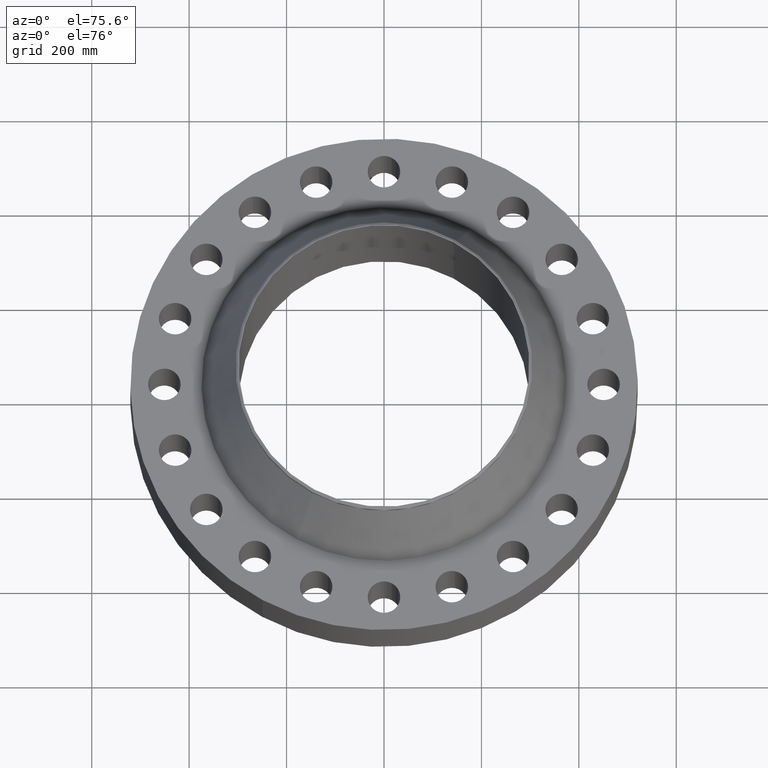
[diagram: clean part render]
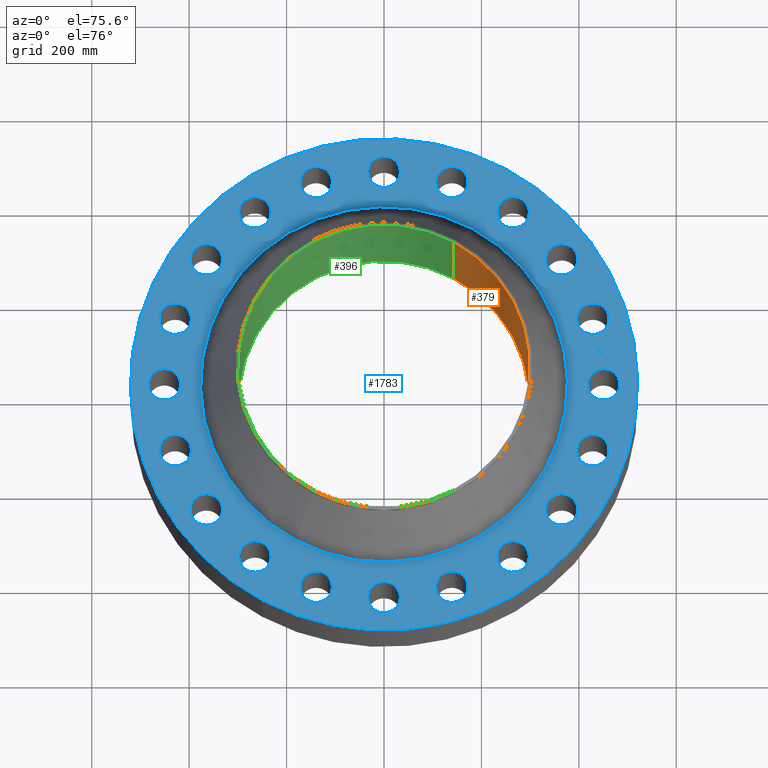
[diagram: same view with three faces highlighted in distinct colors, each labeled with its STEP entity id]
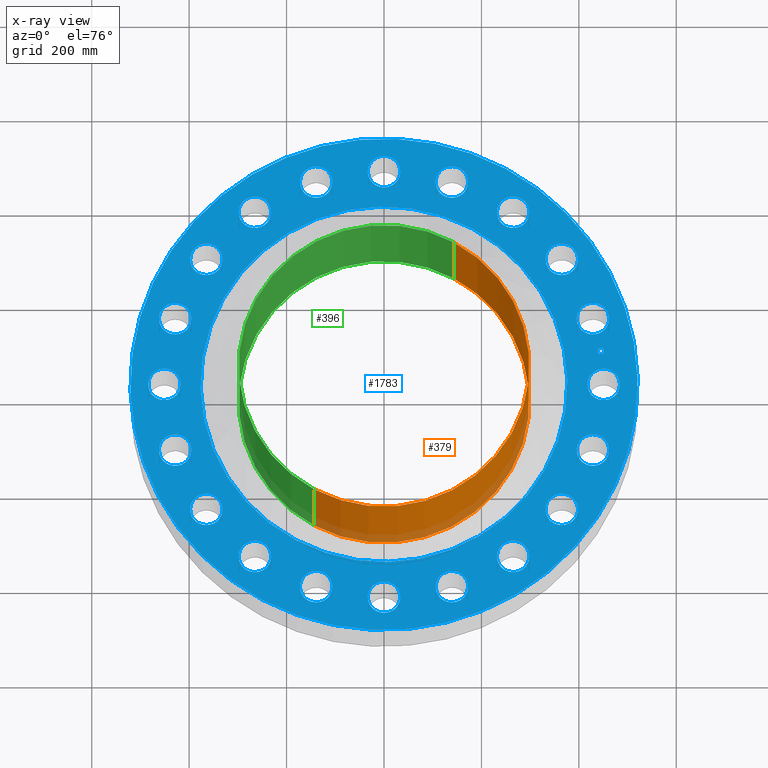
[diagram: x-ray of the same camera — body ghosted, the three highlighted faces saturated]
A machine part, auxiliary view with three faces highlighted in distinct colors.
The next image is the same camera in x-ray (body ghosted, the three faces saturated) — at least one of them is partly hidden behind the body in this view.
Their STEP definitions:

[orange] entity #379 — the highlighted cylindrical surface (partial cylindrical patch) has radius 298.45 mm, axis along (0, 0, -1).
#343=AXIS2_PLACEMENT_3D('Cylinder Axis2P3D',#340,#341,#342) ;
#347=AXIS2_PLACEMENT_3D('Circle Axis2P3D',#345,#346,$) ;
#363=AXIS2_PLACEMENT_3D('Circle Axis2P3D',#361,#362,$) ;
#340=CARTESIAN_POINT('Axis2P3D Location',(0.,0.,5.62500000002)) ;
#345=CARTESIAN_POINT('Axis2P3D Location',(0.,0.,11.5)) ;
#349=CARTESIAN_POINT('Vertex',(5.63325007862,10.3115951023,11.5)) ;
#351=CARTESIAN_POINT('Vertex',(-5.63325007862,-10.3115951023,11.5)) ;
#354=CARTESIAN_POINT('Line Origine',(5.63325007862,10.3115951023,5.62500000002)) ;
#358=CARTESIAN_POINT('Vertex',(5.63325007862,10.3115951023,-0.250000000001)) ;
#361=CARTESIAN_POINT('Axis2P3D Location',(0.,0.,-0.250000000001)) ;
#365=CARTESIAN_POINT('Vertex',(-5.63325007862,-10.3115951023,-0.250000000001)) ;
#368=CARTESIAN_POINT('Line Origine',(-5.63325007862,-10.3115951023,5.62500000002)) ;
#341=DIRECTION('Axis2P3D Direction',(0.,0.,-0.0393700787402)) ;
#342=DIRECTION('Axis2P3D XDirection',(-0.0188750212049,-0.0345504945626,0.)) ;
#346=DIRECTION('Axis2P3D Direction',(0.,0.,-0.0393700787402)) ;
#355=DIRECTION('Vector Direction',(0.,0.,-0.0393700787402)) ;
#362=DIRECTION('Axis2P3D Direction',(0.,0.,-0.0393700787402)) ;
#369=DIRECTION('Vector Direction',(0.,0.,-0.0393700787402)) ;
#356=VECTOR('Line Direction',#355,0.0393700787402) ;
#370=VECTOR('Line Direction',#369,0.0393700787402) ;
#374=ORIENTED_EDGE('',*,*,#353,.F.) ;
#375=ORIENTED_EDGE('',*,*,#360,.T.) ;
#376=ORIENTED_EDGE('',*,*,#367,.T.) ;
#377=ORIENTED_EDGE('',*,*,#372,.F.) ;
#379=ADVANCED_FACE('PartBody',(#378),#344,.F.) ;
#348=CIRCLE('generated circle',#347,11.75) ;
#364=CIRCLE('generated circle',#363,11.75) ;
#344=CYLINDRICAL_SURFACE('generated cylinder',#343,11.75) ;
#353=EDGE_CURVE('',#350,#352,#348,.T.) ;
#360=EDGE_CURVE('',#350,#359,#357,.T.) ;
#367=EDGE_CURVE('',#359,#366,#364,.T.) ;
#372=EDGE_CURVE('',#352,#366,#371,.T.) ;
#373=EDGE_LOOP('',(#374,#375,#376,#377)) ;
#378=FACE_OUTER_BOUND('',#373,.T.) ;
#357=LINE('Line',#354,#356) ;
#371=LINE('Line',#368,#370) ;
#350=VERTEX_POINT('',#349) ;
#352=VERTEX_POINT('',#351) ;
#359=VERTEX_POINT('',#358) ;
#366=VERTEX_POINT('',#365) ;

[blue] entity #1783 — the highlighted planar face has unit normal (0, 0, -1).
#65=AXIS2_PLACEMENT_3D('Circle Axis2P3D',#63,#64,$) ;
#82=AXIS2_PLACEMENT_3D('Circle Axis2P3D',#80,#81,$) ;
#115=AXIS2_PLACEMENT_3D('Circle Axis2P3D',#113,#114,$) ;
#139=AXIS2_PLACEMENT_3D('Circle Axis2P3D',#137,#138,$) ;
#156=AXIS2_PLACEMENT_3D('Circle Axis2P3D',#154,#155,$) ;
#191=AXIS2_PLACEMENT_3D('Circle Axis2P3D',#189,#190,$) ;
#876=AXIS2_PLACEMENT_3D('Circle Axis2P3D',#874,#875,$) ;
#888=AXIS2_PLACEMENT_3D('Circle Axis2P3D',#886,#887,$) ;
#919=AXIS2_PLACEMENT_3D('Circle Axis2P3D',#917,#918,$) ;
#931=AXIS2_PLACEMENT_3D('Circle Axis2P3D',#929,#930,$) ;
#962=AXIS2_PLACEMENT_3D('Circle Axis2P3D',#960,#961,$) ;
#974=AXIS2_PLACEMENT_3D('Circle Axis2P3D',#972,#973,$) ;
#1005=AXIS2_PLACEMENT_3D('Circle Axis2P3D',#1003,#1004,$) ;
#1017=AXIS2_PLACEMENT_3D('Circle Axis2P3D',#1015,#1016,$) ;
#1048=AXIS2_PLACEMENT_3D('Circle Axis2P3D',#1046,#1047,$) ;
#1060=AXIS2_PLACEMENT_3D('Circle Axis2P3D',#1058,#1059,$) ;
#1091=AXIS2_PLACEMENT_3D('Circle Axis2P3D',#1089,#1090,$) ;
#1103=AXIS2_PLACEMENT_3D('Circle Axis2P3D',#1101,#1102,$) ;
#1134=AXIS2_PLACEMENT_3D('Circle Axis2P3D',#1132,#1133,$) ;
#1146=AXIS2_PLACEMENT_3D('Circle Axis2P3D',#1144,#1145,$) ;
#1177=AXIS2_PLACEMENT_3D('Circle Axis2P3D',#1175,#1176,$) ;
#1189=AXIS2_PLACEMENT_3D('Circle Axis2P3D',#1187,#1188,$) ;
#1220=AXIS2_PLACEMENT_3D('Circle Axis2P3D',#1218,#1219,$) ;
#1232=AXIS2_PLACEMENT_3D('Circle Axis2P3D',#1230,#1231,$) ;
#1263=AXIS2_PLACEMENT_3D('Circle Axis2P3D',#1261,#1262,$) ;
#1275=AXIS2_PLACEMENT_3D('Circle Axis2P3D',#1273,#1274,$) ;
#1306=AXIS2_PLACEMENT_3D('Circle Axis2P3D',#1304,#1305,$) ;
#1318=AXIS2_PLACEMENT_3D('Circle Axis2P3D',#1316,#1317,$) ;
#1349=AXIS2_PLACEMENT_3D('Circle Axis2P3D',#1347,#1348,$) ;
#1361=AXIS2_PLACEMENT_3D('Circle Axis2P3D',#1359,#1360,$) ;
#1392=AXIS2_PLACEMENT_3D('Circle Axis2P3D',#1390,#1391,$) ;
#1404=AXIS2_PLACEMENT_3D('Circle Axis2P3D',#1402,#1403,$) ;
#1435=AXIS2_PLACEMENT_3D('Circle Axis2P3D',#1433,#1434,$) ;
#1447=AXIS2_PLACEMENT_3D('Circle Axis2P3D',#1445,#1446,$) ;
#1478=AXIS2_PLACEMENT_3D('Circle Axis2P3D',#1476,#1477,$) ;
#1490=AXIS2_PLACEMENT_3D('Circle Axis2P3D',#1488,#1489,$) ;
#1521=AXIS2_PLACEMENT_3D('Circle Axis2P3D',#1519,#1520,$) ;
#1533=AXIS2_PLACEMENT_3D('Circle Axis2P3D',#1531,#1532,$) ;
#1564=AXIS2_PLACEMENT_3D('Circle Axis2P3D',#1562,#1563,$) ;
#1576=AXIS2_PLACEMENT_3D('Circle Axis2P3D',#1574,#1575,$) ;
#1607=AXIS2_PLACEMENT_3D('Circle Axis2P3D',#1605,#1606,$) ;
#1619=AXIS2_PLACEMENT_3D('Circle Axis2P3D',#1617,#1618,$) ;
#1650=AXIS2_PLACEMENT_3D('Circle Axis2P3D',#1648,#1649,$) ;
#1662=AXIS2_PLACEMENT_3D('Circle Axis2P3D',#1660,#1661,$) ;
#1675=AXIS2_PLACEMENT_3D('Plane Axis2P3D',#1672,#1673,#1674) ;
#1767=AXIS2_PLACEMENT_3D('Circle Axis2P3D',#1765,#1766,$) ;
#1776=AXIS2_PLACEMENT_3D('Circle Axis2P3D',#1774,#1775,$) ;
#46=CARTESIAN_POINT('Vertex',(16.5959789312,0.630444583267,5.50000000002)) ;
#60=CARTESIAN_POINT('Vertex',(18.904021069,-0.630444583267,5.50000000002)) ;
#63=CARTESIAN_POINT('Axis2P3D Location',(17.7500000001,0.,5.50000000002)) ;
#80=CARTESIAN_POINT('Axis2P3D Location',(17.7500000001,0.,5.50000000002)) ;
#110=CARTESIAN_POINT('Vertex',(-9.82822354143,-17.9904425188,5.50000000002)) ;
#113=CARTESIAN_POINT('Axis2P3D Location',(0.,0.,5.50000000002)) ;
#117=CARTESIAN_POINT('Vertex',(9.82822354143,17.9904425188,5.50000000002)) ;
#137=CARTESIAN_POINT('Axis2P3D Location',(0.,0.,5.50000000002)) ;
#154=CARTESIAN_POINT('Axis2P3D Location',(0.,0.,5.50000000002)) ;
#158=CARTESIAN_POINT('Vertex',(7.10745939988,13.0101171641,5.50000000002)) ;
#160=CARTESIAN_POINT('Vertex',(-7.10745939988,-13.0101171641,5.50000000002)) ;
#189=CARTESIAN_POINT('Axis2P3D Location',(0.,0.,5.50000000002)) ;
#864=CARTESIAN_POINT('Vertex',(-15.978531997,4.52885109894,5.50000000002)) ;
#871=CARTESIAN_POINT('Vertex',(-17.7839743316,6.44125220141,5.50000000002)) ;
#874=CARTESIAN_POINT('Axis2P3D Location',(-16.8812531643,5.48505165018,5.50000000002)) ;
#886=CARTESIAN_POINT('Axis2P3D Location',(-16.8812531643,5.48505165018,5.50000000002)) ;
#907=CARTESIAN_POINT('Vertex',(13.796995022,-9.24483128123,5.50000000002)) ;
#914=CARTESIAN_POINT('Vertex',(14.9231082784,-11.6215451752,5.50000000002)) ;
#917=CARTESIAN_POINT('Axis2P3D Location',(14.3600516502,-10.4331882282,5.50000000002)) ;
#929=CARTESIAN_POINT('Axis2P3D Location',(14.3600516502,-10.4331882282,5.50000000002)) ;
#950=CARTESIAN_POINT('Vertex',(-13.796995022,9.24483128123,5.50000000002)) ;
#957=CARTESIAN_POINT('Vertex',(-14.9231082784,11.6215451752,5.50000000002)) ;
#960=CARTESIAN_POINT('Axis2P3D Location',(-14.3600516502,10.4331882282,5.50000000002)) ;
#972=CARTESIAN_POINT('Axis2P3D Location',(-14.3600516502,10.4331882282,5.50000000002)) ;
#993=CARTESIAN_POINT('Vertex',(10.264912045,-13.0558629652,5.50000000002)) ;
#1000=CARTESIAN_POINT('Vertex',(10.6014644115,-15.6642403352,5.50000000002)) ;
#1003=CARTESIAN_POINT('Axis2P3D Location',(10.4331882282,-14.3600516502,5.50000000002)) ;
#1015=CARTESIAN_POINT('Axis2P3D Location',(10.4331882282,-14.3600516502,5.50000000002)) ;
#1036=CARTESIAN_POINT('Vertex',(-10.264912045,13.0558629652,5.50000000002)) ;
#1043=CARTESIAN_POINT('Vertex',(-10.6014644115,15.6642403352,5.50000000002)) ;
#1046=CARTESIAN_POINT('Axis2P3D Location',(-10.4331882282,14.3600516502,5.50000000002)) ;
#1058=CARTESIAN_POINT('Axis2P3D Location',(-10.4331882282,14.3600516502,5.50000000002)) ;
#1079=CARTESIAN_POINT('Vertex',(5.7280279571,-15.5888958166,5.50000000002)) ;
#1086=CARTESIAN_POINT('Vertex',(5.24207534325,-18.1736105121,5.50000000002)) ;
#1089=CARTESIAN_POINT('Axis2P3D Location',(5.48505165018,-16.8812531643,5.50000000002)) ;
#1101=CARTESIAN_POINT('Axis2P3D Location',(5.48505165018,-16.8812531643,5.50000000002)) ;
#1122=CARTESIAN_POINT('Vertex',(-5.7280279571,15.5888958166,5.50000000002)) ;
#1129=CARTESIAN_POINT('Vertex',(-5.24207534325,18.1736105121,5.50000000002)) ;
#1132=CARTESIAN_POINT('Axis2P3D Location',(-5.48505165018,16.8812531643,5.50000000002)) ;
#1144=CARTESIAN_POINT('Axis2P3D Location',(-5.48505165018,16.8812531643,5.50000000002)) ;
#1165=CARTESIAN_POINT('Vertex',(0.630444583267,-16.5959789312,5.50000000002)) ;
#1172=CARTESIAN_POINT('Vertex',(-0.630444583267,-18.904021069,5.50000000002)) ;
#1175=CARTESIAN_POINT('Axis2P3D Location',(2.79023589527E-015,-17.7500000001,5.50000000002)) ;
#1187=CARTESIAN_POINT('Axis2P3D Location',(2.79023589527E-015,-17.7500000001,5.50000000002)) ;
#1208=CARTESIAN_POINT('Vertex',(-0.630444583267,16.5959789312,5.50000000002)) ;
#1215=CARTESIAN_POINT('Vertex',(0.630444583267,18.904021069,5.50000000002)) ;
#1218=CARTESIAN_POINT('Axis2P3D Location',(-1.67878591761E-014,17.7500000001,5.50000000002)) ;
#1230=CARTESIAN_POINT('Axis2P3D Location',(-1.67878591761E-014,17.7500000001,5.50000000002)) ;
#1251=CARTESIAN_POINT('Vertex',(-4.52885109894,-15.978531997,5.50000000002)) ;
#1258=CARTESIAN_POINT('Vertex',(-6.44125220141,-17.7839743316,5.50000000002)) ;
#1261=CARTESIAN_POINT('Axis2P3D Location',(-5.48505165018,-16.8812531643,5.50000000002)) ;
#1273=CARTESIAN_POINT('Axis2P3D Location',(-5.48505165018,-16.8812531643,5.50000000002)) ;
#1294=CARTESIAN_POINT('Vertex',(4.52885109894,15.978531997,5.50000000002)) ;
#1301=CARTESIAN_POINT('Vertex',(6.44125220141,17.7839743316,5.50000000002)) ;
#1304=CARTESIAN_POINT('Axis2P3D Location',(5.48505165018,16.8812531643,5.50000000002)) ;
#1316=CARTESIAN_POINT('Axis2P3D Location',(5.48505165018,16.8812531643,5.50000000002)) ;
#1337=CARTESIAN_POINT('Vertex',(-9.24483128123,-13.796995022,5.50000000002)) ;
#1344=CARTESIAN_POINT('Vertex',(-11.6215451752,-14.9231082784,5.50000000002)) ;
#1347=CARTESIAN_POINT('Axis2P3D Location',(-10.4331882282,-14.3600516502,5.50000000002)) ;
#1359=CARTESIAN_POINT('Axis2P3D Location',(-10.4331882282,-14.3600516502,5.50000000002)) ;
#1380=CARTESIAN_POINT('Vertex',(9.24483128123,13.796995022,5.50000000002)) ;
#1387=CARTESIAN_POINT('Vertex',(11.6215451752,14.9231082784,5.50000000002)) ;
#1390=CARTESIAN_POINT('Axis2P3D Location',(10.4331882282,14.3600516502,5.50000000002)) ;
#1402=CARTESIAN_POINT('Axis2P3D Location',(10.4331882282,14.3600516502,5.50000000002)) ;
#1423=CARTESIAN_POINT('Vertex',(-13.0558629652,-10.264912045,5.50000000002)) ;
#1430=CARTESIAN_POINT('Vertex',(-15.6642403352,-10.6014644115,5.50000000002)) ;
#1433=CARTESIAN_POINT('Axis2P3D Location',(-14.3600516502,-10.4331882282,5.50000000002)) ;
#1445=CARTESIAN_POINT('Axis2P3D Location',(-14.3600516502,-10.4331882282,5.50000000002)) ;
#1466=CARTESIAN_POINT('Vertex',(13.0558629652,10.264912045,5.50000000002)) ;
#1473=CARTESIAN_POINT('Vertex',(15.6642403352,10.6014644115,5.50000000002)) ;
#1476=CARTESIAN_POINT('Axis2P3D Location',(14.3600516502,10.4331882282,5.50000000002)) ;
#1488=CARTESIAN_POINT('Axis2P3D Location',(14.3600516502,10.4331882282,5.50000000002)) ;
#1509=CARTESIAN_POINT('Vertex',(-15.5888958166,-5.7280279571,5.50000000002)) ;
#1516=CARTESIAN_POINT('Vertex',(-18.1736105121,-5.24207534325,5.50000000002)) ;
#1519=CARTESIAN_POINT('Axis2P3D Location',(-16.8812531643,-5.48505165018,5.50000000002)) ;
#1531=CARTESIAN_POINT('Axis2P3D Location',(-16.8812531643,-5.48505165018,5.50000000002)) ;
#1552=CARTESIAN_POINT('Vertex',(15.5888958166,5.7280279571,5.50000000002)) ;
#1559=CARTESIAN_POINT('Vertex',(18.1736105121,5.24207534325,5.50000000002)) ;
#1562=CARTESIAN_POINT('Axis2P3D Location',(16.8812531643,5.48505165018,5.50000000002)) ;
#1574=CARTESIAN_POINT('Axis2P3D Location',(16.8812531643,5.48505165018,5.50000000002)) ;
#1595=CARTESIAN_POINT('Vertex',(-16.5959789312,-0.630444583267,5.50000000002)) ;
#1602=CARTESIAN_POINT('Vertex',(-18.904021069,0.630444583267,5.50000000002)) ;
#1605=CARTESIAN_POINT('Axis2P3D Location',(-17.7500000001,-1.00563315434E-014,5.50000000002)) ;
#1617=CARTESIAN_POINT('Axis2P3D Location',(-17.7500000001,-1.00563315434E-014,5.50000000002)) ;
#1638=CARTESIAN_POINT('Vertex',(15.978531997,-4.52885109894,5.50000000002)) ;
#1645=CARTESIAN_POINT('Vertex',(17.7839743316,-6.44125220141,5.50000000002)) ;
#1648=CARTESIAN_POINT('Axis2P3D Location',(16.8812531643,-5.48505165018,5.50000000002)) ;
#1660=CARTESIAN_POINT('Axis2P3D Location',(16.8812531643,-5.48505165018,5.50000000002)) ;
#1672=CARTESIAN_POINT('Axis2P3D Location',(0.,20.5000000001,5.50000000002)) ;
#1765=CARTESIAN_POINT('Axis2P3D Location',(17.5314680456,2.77671175448,5.50000000002)) ;
#1769=CARTESIAN_POINT('Vertex',(17.4927505155,3.02116461877,5.50000000002)) ;
#1771=CARTESIAN_POINT('Vertex',(17.5701855757,2.53225889018,5.50000000002)) ;
#1774=CARTESIAN_POINT('Axis2P3D Location',(17.5314680456,2.77671175448,5.50000000002)) ;
#64=DIRECTION('Axis2P3D Direction',(0.,-0.,-0.0393700787402)) ;
#81=DIRECTION('Axis2P3D Direction',(0.,-0.,-0.0393700787402)) ;
#114=DIRECTION('Axis2P3D Direction',(0.,0.,-0.0393700787402)) ;
#138=DIRECTION('Axis2P3D Direction',(0.,0.,-0.0393700787402)) ;
#155=DIRECTION('Axis2P3D Direction',(0.,0.,-0.0393700787402)) ;
#190=DIRECTION('Axis2P3D Direction',(0.,0.,-0.0393700787402)) ;
#875=DIRECTION('Axis2P3D Direction',(0.,0.,-0.0393700787402)) ;
#887=DIRECTION('Axis2P3D Direction',(0.,0.,-0.0393700787402)) ;
#918=DIRECTION('Axis2P3D Direction',(0.,-0.,-0.0393700787402)) ;
#930=DIRECTION('Axis2P3D Direction',(0.,-0.,-0.0393700787402)) ;
#961=DIRECTION('Axis2P3D Direction',(0.,0.,-0.0393700787402)) ;
#973=DIRECTION('Axis2P3D Direction',(0.,0.,-0.0393700787402)) ;
#1004=DIRECTION('Axis2P3D Direction',(0.,-0.,-0.0393700787402)) ;
#1016=DIRECTION('Axis2P3D Direction',(0.,-0.,-0.0393700787402)) ;
#1047=DIRECTION('Axis2P3D Direction',(0.,0.,-0.0393700787402)) ;
#1059=DIRECTION('Axis2P3D Direction',(0.,0.,-0.0393700787402)) ;
#1090=DIRECTION('Axis2P3D Direction',(0.,-0.,-0.0393700787402)) ;
#1102=DIRECTION('Axis2P3D Direction',(0.,-0.,-0.0393700787402)) ;
#1133=DIRECTION('Axis2P3D Direction',(0.,0.,-0.0393700787402)) ;
#1145=DIRECTION('Axis2P3D Direction',(0.,0.,-0.0393700787402)) ;
#1176=DIRECTION('Axis2P3D Direction',(0.,-0.,-0.0393700787402)) ;
#1188=DIRECTION('Axis2P3D Direction',(0.,-0.,-0.0393700787402)) ;
#1219=DIRECTION('Axis2P3D Direction',(0.,0.,-0.0393700787402)) ;
#1231=DIRECTION('Axis2P3D Direction',(0.,0.,-0.0393700787402)) ;
#1262=DIRECTION('Axis2P3D Direction',(-0.,0.,-0.0393700787402)) ;
#1274=DIRECTION('Axis2P3D Direction',(-0.,0.,-0.0393700787402)) ;
#1305=DIRECTION('Axis2P3D Direction',(0.,0.,-0.0393700787402)) ;
#1317=DIRECTION('Axis2P3D Direction',(0.,0.,-0.0393700787402)) ;
#1348=DIRECTION('Axis2P3D Direction',(-0.,0.,-0.0393700787402)) ;
#1360=DIRECTION('Axis2P3D Direction',(-0.,0.,-0.0393700787402)) ;
#1391=DIRECTION('Axis2P3D Direction',(0.,0.,-0.0393700787402)) ;
#1403=DIRECTION('Axis2P3D Direction',(0.,0.,-0.0393700787402)) ;
#1434=DIRECTION('Axis2P3D Direction',(-0.,0.,-0.0393700787402)) ;
#1446=DIRECTION('Axis2P3D Direction',(-0.,0.,-0.0393700787402)) ;
#1477=DIRECTION('Axis2P3D Direction',(0.,0.,-0.0393700787402)) ;
#1489=DIRECTION('Axis2P3D Direction',(0.,0.,-0.0393700787402)) ;
#1520=DIRECTION('Axis2P3D Direction',(-0.,0.,-0.0393700787402)) ;
#1532=DIRECTION('Axis2P3D Direction',(-0.,0.,-0.0393700787402)) ;
#1563=DIRECTION('Axis2P3D Direction',(0.,0.,-0.0393700787402)) ;
#1575=DIRECTION('Axis2P3D Direction',(0.,0.,-0.0393700787402)) ;
#1606=DIRECTION('Axis2P3D Direction',(-0.,0.,-0.0393700787402)) ;
#1618=DIRECTION('Axis2P3D Direction',(-0.,0.,-0.0393700787402)) ;
#1649=DIRECTION('Axis2P3D Direction',(0.,-0.,-0.0393700787402)) ;
#1661=DIRECTION('Axis2P3D Direction',(0.,-0.,-0.0393700787402)) ;
#1673=DIRECTION('Axis2P3D Direction',(0.,0.,-0.0393700787402)) ;
#1674=DIRECTION('Axis2P3D XDirection',(0.0393700787402,0.,0.)) ;
#1766=DIRECTION('Axis2P3D Direction',(0.,0.,-0.0393700787402)) ;
#1775=DIRECTION('Axis2P3D Direction',(0.,0.,-0.0393700787402)) ;
#1678=ORIENTED_EDGE('',*,*,#141,.F.) ;
#1679=ORIENTED_EDGE('',*,*,#119,.F.) ;
#1682=ORIENTED_EDGE('',*,*,#67,.T.) ;
#1683=ORIENTED_EDGE('',*,*,#84,.T.) ;
#1686=ORIENTED_EDGE('',*,*,#193,.T.) ;
#1687=ORIENTED_EDGE('',*,*,#162,.T.) ;
#1690=ORIENTED_EDGE('',*,*,#1664,.T.) ;
#1691=ORIENTED_EDGE('',*,*,#1652,.T.) ;
#1694=ORIENTED_EDGE('',*,*,#933,.T.) ;
#1695=ORIENTED_EDGE('',*,*,#921,.T.) ;
#1698=ORIENTED_EDGE('',*,*,#1019,.T.) ;
#1699=ORIENTED_EDGE('',*,*,#1007,.T.) ;
#1702=ORIENTED_EDGE('',*,*,#1105,.T.) ;
#1703=ORIENTED_EDGE('',*,*,#1093,.T.) ;
#1706=ORIENTED_EDGE('',*,*,#1191,.T.) ;
#1707=ORIENTED_EDGE('',*,*,#1179,.T.) ;
#1710=ORIENTED_EDGE('',*,*,#1277,.T.) ;
#1711=ORIENTED_EDGE('',*,*,#1265,.T.) ;
#1714=ORIENTED_EDGE('',*,*,#1363,.T.) ;
#1715=ORIENTED_EDGE('',*,*,#1351,.T.) ;
#1718=ORIENTED_EDGE('',*,*,#1449,.T.) ;
#1719=ORIENTED_EDGE('',*,*,#1437,.T.) ;
#1722=ORIENTED_EDGE('',*,*,#1535,.T.) ;
#1723=ORIENTED_EDGE('',*,*,#1523,.T.) ;
#1726=ORIENTED_EDGE('',*,*,#1621,.T.) ;
#1727=ORIENTED_EDGE('',*,*,#1609,.T.) ;
#1730=ORIENTED_EDGE('',*,*,#890,.T.) ;
#1731=ORIENTED_EDGE('',*,*,#878,.T.) ;
#1734=ORIENTED_EDGE('',*,*,#976,.T.) ;
#1735=ORIENTED_EDGE('',*,*,#964,.T.) ;
#1738=ORIENTED_EDGE('',*,*,#1062,.T.) ;
#1739=ORIENTED_EDGE('',*,*,#1050,.T.) ;
#1742=ORIENTED_EDGE('',*,*,#1148,.T.) ;
#1743=ORIENTED_EDGE('',*,*,#1136,.T.) ;
#1746=ORIENTED_EDGE('',*,*,#1234,.T.) ;
#1747=ORIENTED_EDGE('',*,*,#1222,.T.) ;
#1750=ORIENTED_EDGE('',*,*,#1320,.T.) ;
#1751=ORIENTED_EDGE('',*,*,#1308,.T.) ;
#1754=ORIENTED_EDGE('',*,*,#1406,.T.) ;
#1755=ORIENTED_EDGE('',*,*,#1394,.T.) ;
#1758=ORIENTED_EDGE('',*,*,#1492,.T.) ;
#1759=ORIENTED_EDGE('',*,*,#1480,.T.) ;
#1762=ORIENTED_EDGE('',*,*,#1578,.T.) ;
#1763=ORIENTED_EDGE('',*,*,#1566,.T.) ;
#1780=ORIENTED_EDGE('',*,*,#1773,.T.) ;
#1781=ORIENTED_EDGE('',*,*,#1778,.T.) ;
#1684=FACE_BOUND('',#1681,.T.) ;
#1688=FACE_BOUND('',#1685,.T.) ;
#1692=FACE_BOUND('',#1689,.T.) ;
#1696=FACE_BOUND('',#1693,.T.) ;
#1700=FACE_BOUND('',#1697,.T.) ;
#1704=FACE_BOUND('',#1701,.T.) ;
#1708=FACE_BOUND('',#1705,.T.) ;
#1712=FACE_BOUND('',#1709,.T.) ;
#1716=FACE_BOUND('',#1713,.T.) ;
#1720=FACE_BOUND('',#1717,.T.) ;
#1724=FACE_BOUND('',#1721,.T.) ;
#1728=FACE_BOUND('',#1725,.T.) ;
#1732=FACE_BOUND('',#1729,.T.) ;
#1736=FACE_BOUND('',#1733,.T.) ;
#1740=FACE_BOUND('',#1737,.T.) ;
#1744=FACE_BOUND('',#1741,.T.) ;
#1748=FACE_BOUND('',#1745,.T.) ;
#1752=FACE_BOUND('',#1749,.T.) ;
#1756=FACE_BOUND('',#1753,.T.) ;
#1760=FACE_BOUND('',#1757,.T.) ;
#1764=FACE_BOUND('',#1761,.T.) ;
#1782=FACE_BOUND('',#1779,.T.) ;
#1783=ADVANCED_FACE('PartBody',(#1680,#1684,#1688,#1692,#1696,#1700,#1704,#1708,#1712,#1716,#1720,#1724,#1728,#1732,#1736,#1740,#1744,#1748,#1752,#1756,#1760,#1764,#1782),#1676,.F.) ;
#66=CIRCLE('generated circle',#65,1.31500000001) ;
#83=CIRCLE('generated circle',#82,1.31500000001) ;
#116=CIRCLE('generated circle',#115,20.5000000001) ;
#140=CIRCLE('generated circle',#139,20.5000000001) ;
#157=CIRCLE('generated circle',#156,14.8249495022) ;
#192=CIRCLE('generated circle',#191,14.8249495022) ;
#877=CIRCLE('generated circle',#876,1.31500000001) ;
#889=CIRCLE('generated circle',#888,1.31500000001) ;
#920=CIRCLE('generated circle',#919,1.31500000001) ;
#932=CIRCLE('generated circle',#931,1.31500000001) ;
#963=CIRCLE('generated circle',#962,1.31500000001) ;
#975=CIRCLE('generated circle',#974,1.31500000001) ;
#1006=CIRCLE('generated circle',#1005,1.31500000001) ;
#1018=CIRCLE('generated circle',#1017,1.31500000001) ;
#1049=CIRCLE('generated circle',#1048,1.31500000001) ;
#1061=CIRCLE('generated circle',#1060,1.31500000001) ;
#1092=CIRCLE('generated circle',#1091,1.31500000001) ;
#1104=CIRCLE('generated circle',#1103,1.31500000001) ;
#1135=CIRCLE('generated circle',#1134,1.31500000001) ;
#1147=CIRCLE('generated circle',#1146,1.31500000001) ;
#1178=CIRCLE('generated circle',#1177,1.31500000001) ;
#1190=CIRCLE('generated circle',#1189,1.31500000001) ;
#1221=CIRCLE('generated circle',#1220,1.31500000001) ;
#1233=CIRCLE('generated circle',#1232,1.31500000001) ;
#1264=CIRCLE('generated circle',#1263,1.31500000001) ;
#1276=CIRCLE('generated circle',#1275,1.31500000001) ;
#1307=CIRCLE('generated circle',#1306,1.31500000001) ;
#1319=CIRCLE('generated circle',#1318,1.31500000001) ;
#1350=CIRCLE('generated circle',#1349,1.31500000001) ;
#1362=CIRCLE('generated circle',#1361,1.31500000001) ;
#1393=CIRCLE('generated circle',#1392,1.31500000001) ;
#1405=CIRCLE('generated circle',#1404,1.31500000001) ;
#1436=CIRCLE('generated circle',#1435,1.31500000001) ;
#1448=CIRCLE('generated circle',#1447,1.31500000001) ;
#1479=CIRCLE('generated circle',#1478,1.31500000001) ;
#1491=CIRCLE('generated circle',#1490,1.31500000001) ;
#1522=CIRCLE('generated circle',#1521,1.31500000001) ;
#1534=CIRCLE('generated circle',#1533,1.31500000001) ;
#1565=CIRCLE('generated circle',#1564,1.31500000001) ;
#1577=CIRCLE('generated circle',#1576,1.31500000001) ;
#1608=CIRCLE('generated circle',#1607,1.31500000001) ;
#1620=CIRCLE('generated circle',#1619,1.31500000001) ;
#1651=CIRCLE('generated circle',#1650,1.31500000001) ;
#1663=CIRCLE('generated circle',#1662,1.31500000001) ;
#1768=CIRCLE('generated circle',#1767,0.247500000001) ;
#1777=CIRCLE('generated circle',#1776,0.247500000001) ;
#67=EDGE_CURVE('',#47,#61,#66,.T.) ;
#84=EDGE_CURVE('',#61,#47,#83,.T.) ;
#119=EDGE_CURVE('',#111,#118,#116,.T.) ;
#141=EDGE_CURVE('',#118,#111,#140,.T.) ;
#162=EDGE_CURVE('',#159,#161,#157,.T.) ;
#193=EDGE_CURVE('',#161,#159,#192,.T.) ;
#878=EDGE_CURVE('',#865,#872,#877,.T.) ;
#890=EDGE_CURVE('',#872,#865,#889,.T.) ;
#921=EDGE_CURVE('',#908,#915,#920,.T.) ;
#933=EDGE_CURVE('',#915,#908,#932,.T.) ;
#964=EDGE_CURVE('',#951,#958,#963,.T.) ;
#976=EDGE_CURVE('',#958,#951,#975,.T.) ;
#1007=EDGE_CURVE('',#994,#1001,#1006,.T.) ;
#1019=EDGE_CURVE('',#1001,#994,#1018,.T.) ;
#1050=EDGE_CURVE('',#1037,#1044,#1049,.T.) ;
#1062=EDGE_CURVE('',#1044,#1037,#1061,.T.) ;
#1093=EDGE_CURVE('',#1080,#1087,#1092,.T.) ;
#1105=EDGE_CURVE('',#1087,#1080,#1104,.T.) ;
#1136=EDGE_CURVE('',#1123,#1130,#1135,.T.) ;
#1148=EDGE_CURVE('',#1130,#1123,#1147,.T.) ;
#1179=EDGE_CURVE('',#1166,#1173,#1178,.T.) ;
#1191=EDGE_CURVE('',#1173,#1166,#1190,.T.) ;
#1222=EDGE_CURVE('',#1209,#1216,#1221,.T.) ;
#1234=EDGE_CURVE('',#1216,#1209,#1233,.T.) ;
#1265=EDGE_CURVE('',#1252,#1259,#1264,.T.) ;
#1277=EDGE_CURVE('',#1259,#1252,#1276,.T.) ;
#1308=EDGE_CURVE('',#1295,#1302,#1307,.T.) ;
#1320=EDGE_CURVE('',#1302,#1295,#1319,.T.) ;
#1351=EDGE_CURVE('',#1338,#1345,#1350,.T.) ;
#1363=EDGE_CURVE('',#1345,#1338,#1362,.T.) ;
#1394=EDGE_CURVE('',#1381,#1388,#1393,.T.) ;
#1406=EDGE_CURVE('',#1388,#1381,#1405,.T.) ;
#1437=EDGE_CURVE('',#1424,#1431,#1436,.T.) ;
#1449=EDGE_CURVE('',#1431,#1424,#1448,.T.) ;
#1480=EDGE_CURVE('',#1467,#1474,#1479,.T.) ;
#1492=EDGE_CURVE('',#1474,#1467,#1491,.T.) ;
#1523=EDGE_CURVE('',#1510,#1517,#1522,.T.) ;
#1535=EDGE_CURVE('',#1517,#1510,#1534,.T.) ;
#1566=EDGE_CURVE('',#1553,#1560,#1565,.T.) ;
#1578=EDGE_CURVE('',#1560,#1553,#1577,.T.) ;
#1609=EDGE_CURVE('',#1596,#1603,#1608,.T.) ;
#1621=EDGE_CURVE('',#1603,#1596,#1620,.T.) ;
#1652=EDGE_CURVE('',#1639,#1646,#1651,.T.) ;
#1664=EDGE_CURVE('',#1646,#1639,#1663,.T.) ;
#1773=EDGE_CURVE('',#1770,#1772,#1768,.T.) ;
#1778=EDGE_CURVE('',#1772,#1770,#1777,.T.) ;
#1677=EDGE_LOOP('',(#1678,#1679)) ;
#1681=EDGE_LOOP('',(#1682,#1683)) ;
#1685=EDGE_LOOP('',(#1686,#1687)) ;
#1689=EDGE_LOOP('',(#1690,#1691)) ;
#1693=EDGE_LOOP('',(#1694,#1695)) ;
#1697=EDGE_LOOP('',(#1698,#1699)) ;
#1701=EDGE_LOOP('',(#1702,#1703)) ;
#1705=EDGE_LOOP('',(#1706,#1707)) ;
#1709=EDGE_LOOP('',(#1710,#1711)) ;
#1713=EDGE_LOOP('',(#1714,#1715)) ;
#1717=EDGE_LOOP('',(#1718,#1719)) ;
#1721=EDGE_LOOP('',(#1722,#1723)) ;
#1725=EDGE_LOOP('',(#1726,#1727)) ;
#1729=EDGE_LOOP('',(#1730,#1731)) ;
#1733=EDGE_LOOP('',(#1734,#1735)) ;
#1737=EDGE_LOOP('',(#1738,#1739)) ;
#1741=EDGE_LOOP('',(#1742,#1743)) ;
#1745=EDGE_LOOP('',(#1746,#1747)) ;
#1749=EDGE_LOOP('',(#1750,#1751)) ;
#1753=EDGE_LOOP('',(#1754,#1755)) ;
#1757=EDGE_LOOP('',(#1758,#1759)) ;
#1761=EDGE_LOOP('',(#1762,#1763)) ;
#1779=EDGE_LOOP('',(#1780,#1781)) ;
#1680=FACE_OUTER_BOUND('',#1677,.T.) ;
#1676=PLANE('',#1675) ;
#47=VERTEX_POINT('',#46) ;
#61=VERTEX_POINT('',#60) ;
#111=VERTEX_POINT('',#110) ;
#118=VERTEX_POINT('',#117) ;
#159=VERTEX_POINT('',#158) ;
#161=VERTEX_POINT('',#160) ;
#865=VERTEX_POINT('',#864) ;
#872=VERTEX_POINT('',#871) ;
#908=VERTEX_POINT('',#907) ;
#915=VERTEX_POINT('',#914) ;
#951=VERTEX_POINT('',#950) ;
#958=VERTEX_POINT('',#957) ;
#994=VERTEX_POINT('',#993) ;
#1001=VERTEX_POINT('',#1000) ;
#1037=VERTEX_POINT('',#1036) ;
#1044=VERTEX_POINT('',#1043) ;
#1080=VERTEX_POINT('',#1079) ;
#1087=VERTEX_POINT('',#1086) ;
#1123=VERTEX_POINT('',#1122) ;
#1130=VERTEX_POINT('',#1129) ;
#1166=VERTEX_POINT('',#1165) ;
#1173=VERTEX_POINT('',#1172) ;
#1209=VERTEX_POINT('',#1208) ;
#1216=VERTEX_POINT('',#1215) ;
#1252=VERTEX_POINT('',#1251) ;
#1259=VERTEX_POINT('',#1258) ;
#1295=VERTEX_POINT('',#1294) ;
#1302=VERTEX_POINT('',#1301) ;
#1338=VERTEX_POINT('',#1337) ;
#1345=VERTEX_POINT('',#1344) ;
#1381=VERTEX_POINT('',#1380) ;
#1388=VERTEX_POINT('',#1387) ;
#1424=VERTEX_POINT('',#1423) ;
#1431=VERTEX_POINT('',#1430) ;
#1467=VERTEX_POINT('',#1466) ;
#1474=VERTEX_POINT('',#1473) ;
#1510=VERTEX_POINT('',#1509) ;
#1517=VERTEX_POINT('',#1516) ;
#1553=VERTEX_POINT('',#1552) ;
#1560=VERTEX_POINT('',#1559) ;
#1596=VERTEX_POINT('',#1595) ;
#1603=VERTEX_POINT('',#1602) ;
#1639=VERTEX_POINT('',#1638) ;
#1646=VERTEX_POINT('',#1645) ;
#1770=VERTEX_POINT('',#1769) ;
#1772=VERTEX_POINT('',#1771) ;

[green] entity #396 — the highlighted cylindrical surface (partial cylindrical patch) has radius 298.45 mm, axis along (0, 0, -1).
#343=AXIS2_PLACEMENT_3D('Cylinder Axis2P3D',#340,#341,#342) ;
#382=AXIS2_PLACEMENT_3D('Circle Axis2P3D',#380,#381,$) ;
#387=AXIS2_PLACEMENT_3D('Circle Axis2P3D',#385,#386,$) ;
#340=CARTESIAN_POINT('Axis2P3D Location',(0.,0.,5.62500000002)) ;
#349=CARTESIAN_POINT('Vertex',(5.63325007862,10.3115951023,11.5)) ;
#351=CARTESIAN_POINT('Vertex',(-5.63325007862,-10.3115951023,11.5)) ;
#354=CARTESIAN_POINT('Line Origine',(5.63325007862,10.3115951023,5.62500000002)) ;
#358=CARTESIAN_POINT('Vertex',(5.63325007862,10.3115951023,-0.250000000001)) ;
#365=CARTESIAN_POINT('Vertex',(-5.63325007862,-10.3115951023,-0.250000000001)) ;
#368=CARTESIAN_POINT('Line Origine',(-5.63325007862,-10.3115951023,5.62500000002)) ;
#380=CARTESIAN_POINT('Axis2P3D Location',(0.,0.,11.5)) ;
#385=CARTESIAN_POINT('Axis2P3D Location',(0.,0.,-0.250000000001)) ;
#341=DIRECTION('Axis2P3D Direction',(0.,0.,-0.0393700787402)) ;
#342=DIRECTION('Axis2P3D XDirection',(-0.0188750212049,-0.0345504945626,0.)) ;
#355=DIRECTION('Vector Direction',(0.,0.,-0.0393700787402)) ;
#369=DIRECTION('Vector Direction',(0.,0.,-0.0393700787402)) ;
#381=DIRECTION('Axis2P3D Direction',(0.,0.,-0.0393700787402)) ;
#386=DIRECTION('Axis2P3D Direction',(0.,0.,-0.0393700787402)) ;
#356=VECTOR('Line Direction',#355,0.0393700787402) ;
#370=VECTOR('Line Direction',#369,0.0393700787402) ;
#391=ORIENTED_EDGE('',*,*,#384,.F.) ;
#392=ORIENTED_EDGE('',*,*,#372,.T.) ;
#393=ORIENTED_EDGE('',*,*,#389,.T.) ;
#394=ORIENTED_EDGE('',*,*,#360,.F.) ;
#396=ADVANCED_FACE('PartBody',(#395),#344,.F.) ;
#383=CIRCLE('generated circle',#382,11.75) ;
#388=CIRCLE('generated circle',#387,11.75) ;
#344=CYLINDRICAL_SURFACE('generated cylinder',#343,11.75) ;
#360=EDGE_CURVE('',#350,#359,#357,.T.) ;
#372=EDGE_CURVE('',#352,#366,#371,.T.) ;
#384=EDGE_CURVE('',#352,#350,#383,.T.) ;
#389=EDGE_CURVE('',#366,#359,#388,.T.) ;
#390=EDGE_LOOP('',(#391,#392,#393,#394)) ;
#395=FACE_OUTER_BOUND('',#390,.T.) ;
#357=LINE('Line',#354,#356) ;
#371=LINE('Line',#368,#370) ;
#350=VERTEX_POINT('',#349) ;
#352=VERTEX_POINT('',#351) ;
#359=VERTEX_POINT('',#358) ;
#366=VERTEX_POINT('',#365) ;